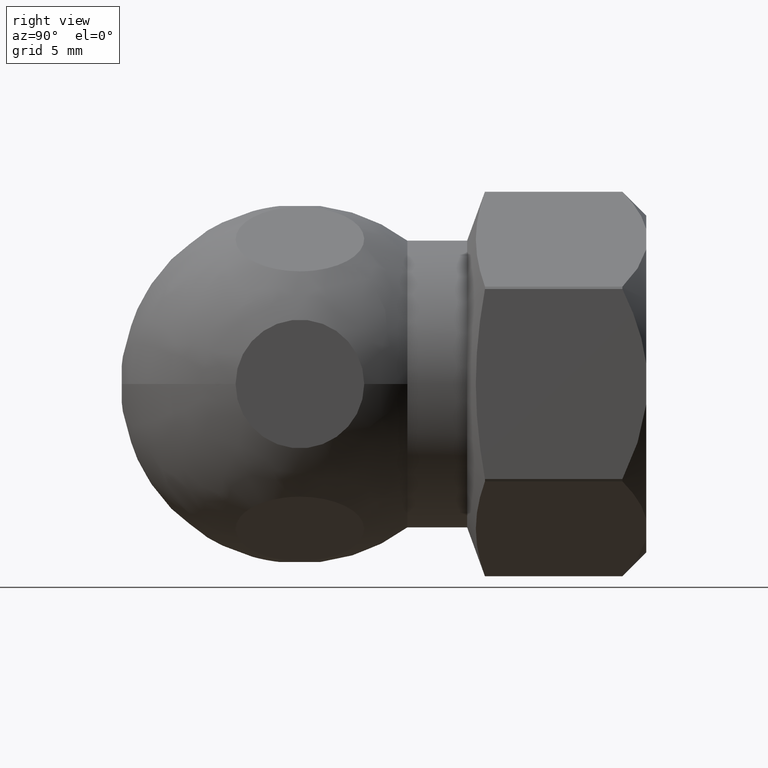
[diagram: clean part render]
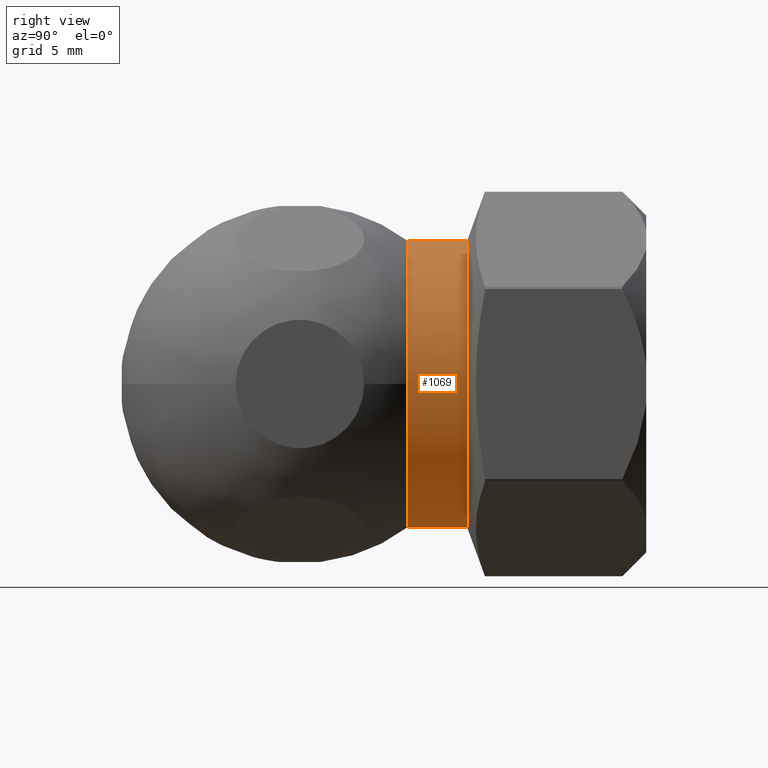
[diagram: same view with one face highlighted and labeled with its STEP entity id]
A machine part, right view. The second image highlights one B-rep face of the part: STEP entity #1069.
In plain terms, the highlighted cylindrical surface (partial cylindrical patch) has radius 6 mm, axis along (0, 1, 0).
Its self-contained STEP definition (entity closure, byte-faithful):
#12 = CARTESIAN_POINT ( 'NONE',  ( 7.347880794884105900E-016, -9.999999999999998200, -5.999999999999988500 ) ) ;
#60 = VECTOR ( 'NONE', #1014, 1000.000000000000000 ) ;
#69 = VERTEX_POINT ( 'NONE', #1264 ) ;
#110 = DIRECTION ( 'NONE',  ( -0.0000000000000000000, -1.000000000000000000, -0.0000000000000000000 ) ) ;
#115 = ORIENTED_EDGE ( 'NONE', *, *, #773, .F. ) ;
#177 = DIRECTION ( 'NONE',  ( 0.0000000000000000000, 0.0000000000000000000, 1.000000000000000000 ) ) ;
#186 = CARTESIAN_POINT ( 'NONE',  ( 0.0000000000000000000, -7.500000000000000000, 5.999999999999988500 ) ) ;
#273 = DIRECTION ( 'NONE',  ( -0.0000000000000000000, -1.000000000000000000, -0.0000000000000000000 ) ) ;
#344 = LINE ( 'NONE', #1357, #713 ) ;
#360 = CARTESIAN_POINT ( 'NONE',  ( 0.0000000000000000000, -7.500000000000000000, 0.0000000000000000000 ) ) ;
#436 = CARTESIAN_POINT ( 'NONE',  ( 7.347880794884105900E-016, 8.561167148425877100, -5.999999999999988500 ) ) ;
#449 = DIRECTION ( 'NONE',  ( 0.0000000000000000000, 0.0000000000000000000, 1.000000000000000000 ) ) ;
#471 = EDGE_CURVE ( 'NONE', #1222, #772, #1432, .T. ) ;
#472 = VERTEX_POINT ( 'NONE', #186 ) ;
#495 = EDGE_CURVE ( 'NONE', #1521, #69, #750, .T. ) ;
#537 = ORIENTED_EDGE ( 'NONE', *, *, #1271, .F. ) ;
#649 = AXIS2_PLACEMENT_3D ( 'NONE', #757, #273, #767 ) ;
#658 = DIRECTION ( 'NONE',  ( -0.0000000000000000000, -1.000000000000000000, -0.0000000000000000000 ) ) ;
#698 = CARTESIAN_POINT ( 'NONE',  ( 0.0000000000000000000, 8.561167148425877100, 0.0000000000000000000 ) ) ;
#713 = VECTOR ( 'NONE', #1482, 1000.000000000000000 ) ;
#750 = CIRCLE ( 'NONE', #1498, 5.999999999999988500 ) ;
#751 = CIRCLE ( 'NONE', #957, 5.999999999999988500 ) ;
#757 = CARTESIAN_POINT ( 'NONE',  ( 0.0000000000000000000, -9.999999999999998200, 0.0000000000000000000 ) ) ;
#767 = DIRECTION ( 'NONE',  ( 0.0000000000000000000, 0.0000000000000000000, 1.000000000000000000 ) ) ;
#772 = VERTEX_POINT ( 'NONE', #880 ) ;
#773 = EDGE_CURVE ( 'NONE', #1222, #1521, #1280, .T. ) ;
#840 = FACE_OUTER_BOUND ( 'NONE', #1033, .T. ) ;
#869 = ORIENTED_EDGE ( 'NONE', *, *, #1106, .T. ) ;
#876 = CYLINDRICAL_SURFACE ( 'NONE', #1212, 5.999999999999988500 ) ;
#880 = CARTESIAN_POINT ( 'NONE',  ( 8.603143764010152600E-016, -7.500000000000000000, -5.999999999999988500 ) ) ;
#909 = CARTESIAN_POINT ( 'NONE',  ( 0.0000000000000000000, -9.999999999999998200, 0.0000000000000000000 ) ) ;
#946 = CARTESIAN_POINT ( 'NONE',  ( 5.999999999999989300, -9.999999999999998200, 5.510910596163106300E-016 ) ) ;
#957 = AXIS2_PLACEMENT_3D ( 'NONE', #360, #110, #1171 ) ;
#1014 = DIRECTION ( 'NONE',  ( 0.0000000000000000000, 1.000000000000000000, 0.0000000000000000000 ) ) ;
#1033 = EDGE_LOOP ( 'NONE', ( #115, #1361, #869, #537, #1446 ) ) ;
#1052 = DIRECTION ( 'NONE',  ( 0.0000000000000000000, 1.000000000000000000, 0.0000000000000000000 ) ) ;
#1069 = ADVANCED_FACE ( 'NONE', ( #840 ), #876, .T. ) ;
#1106 = EDGE_CURVE ( 'NONE', #772, #472, #751, .T. ) ;
#1171 = DIRECTION ( 'NONE',  ( 0.0000000000000000000, 0.0000000000000000000, 1.000000000000000000 ) ) ;
#1212 = AXIS2_PLACEMENT_3D ( 'NONE', #698, #1052, #449 ) ;
#1222 = VERTEX_POINT ( 'NONE', #12 ) ;
#1264 = CARTESIAN_POINT ( 'NONE',  ( 0.0000000000000000000, -9.999999999999998200, 5.999999999999988500 ) ) ;
#1271 = EDGE_CURVE ( 'NONE', #69, #472, #344, .T. ) ;
#1280 = CIRCLE ( 'NONE', #649, 5.999999999999988500 ) ;
#1357 = CARTESIAN_POINT ( 'NONE',  ( 0.0000000000000000000, 8.561167148425877100, 5.999999999999988500 ) ) ;
#1361 = ORIENTED_EDGE ( 'NONE', *, *, #471, .T. ) ;
#1432 = LINE ( 'NONE', #436, #60 ) ;
#1446 = ORIENTED_EDGE ( 'NONE', *, *, #495, .F. ) ;
#1482 = DIRECTION ( 'NONE',  ( 0.0000000000000000000, 1.000000000000000000, 0.0000000000000000000 ) ) ;
#1498 = AXIS2_PLACEMENT_3D ( 'NONE', #909, #658, #177 ) ;
#1521 = VERTEX_POINT ( 'NONE', #946 ) ;